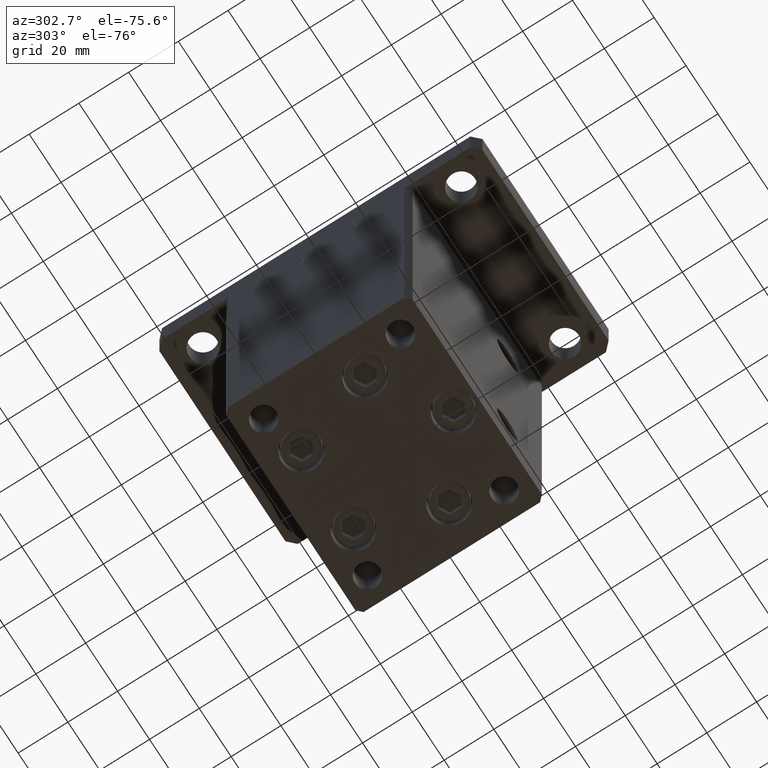
[diagram: clean part render]
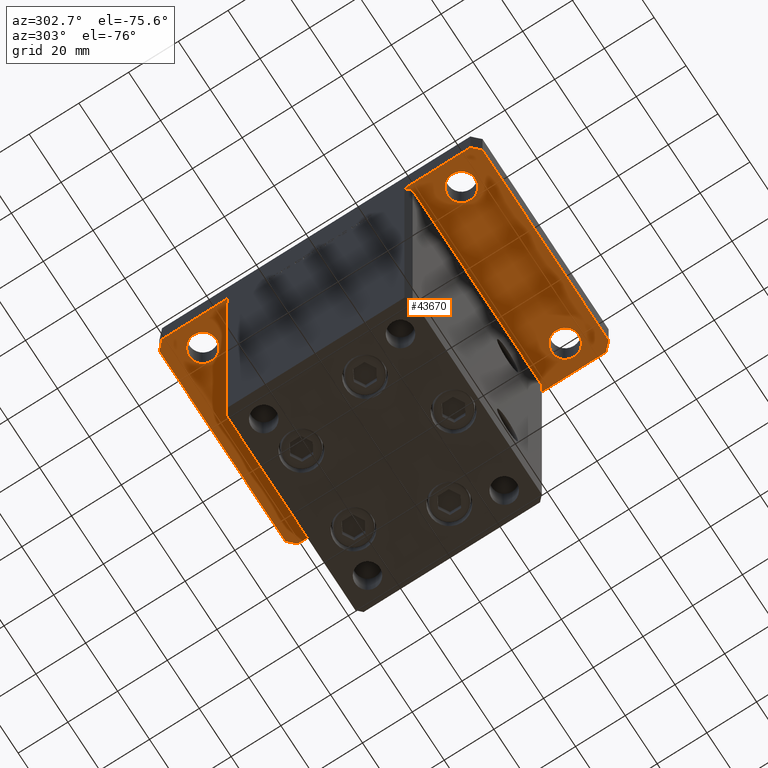
[diagram: same view with one face highlighted and labeled with its STEP entity id]
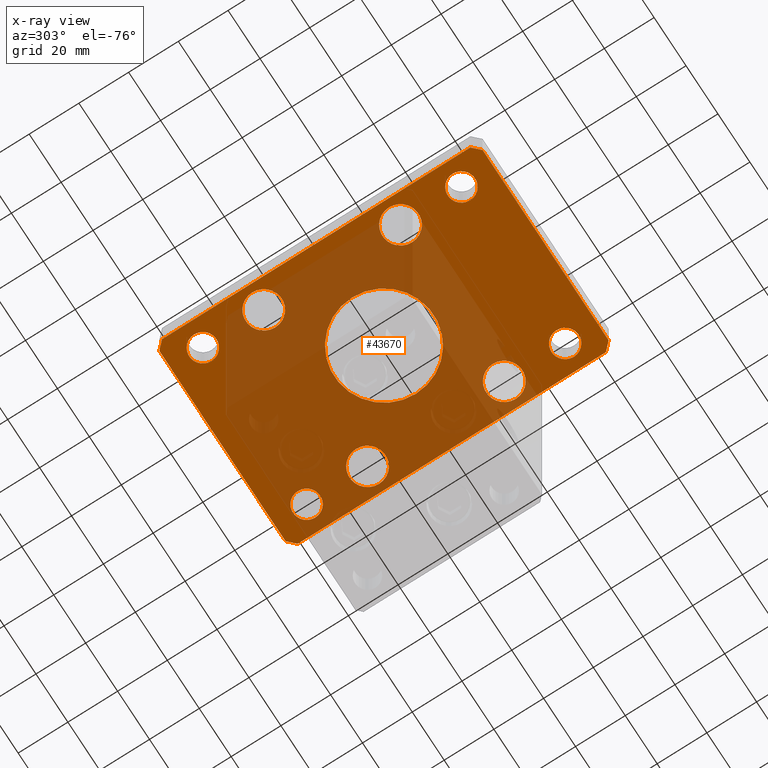
[diagram: x-ray of the same camera — body ghosted, the highlighted face saturated]
A machine part, auxiliary view. The second image highlights one B-rep face of the part: STEP entity #43670.
The next image is the same camera in x-ray: the body ghosted, the highlighted face saturated — about 59% of this face is hidden behind the body in this view.
In plain terms, the highlighted planar face has unit normal (0, 0, 1).
Its self-contained STEP definition (entity closure, byte-faithful):
#44 = CARTESIAN_POINT ( 'NONE',  ( 39.75000000000000000, -27.50000000000000000, 0.000000000000000000 ) ) ;
#769 = PLANE ( 'NONE',  #8761 ) ;
#1121 = AXIS2_PLACEMENT_3D ( 'NONE', #14749, #17997, #39419 ) ;
#1249 = CARTESIAN_POINT ( 'NONE',  ( 0.000000000000000000, 0.000000000000000000, 0.000000000000000000 ) ) ;
#1485 = VERTEX_POINT ( 'NONE', #13244 ) ;
#1499 = AXIS2_PLACEMENT_3D ( 'NONE', #37925, #33861, #50399 ) ;
#1548 = VERTEX_POINT ( 'NONE', #37652 ) ;
#1852 = CIRCLE ( 'NONE', #32178, 20.00000000000000000 ) ;
#2328 = AXIS2_PLACEMENT_3D ( 'NONE', #24050, #3932, #20494 ) ;
#2590 = CARTESIAN_POINT ( 'NONE',  ( -32.50000000000000000, -27.50000000000000000, 0.000000000000000000 ) ) ;
#2632 = AXIS2_PLACEMENT_3D ( 'NONE', #9459, #10540, #50669 ) ;
#3158 = VERTEX_POINT ( 'NONE', #12448 ) ;
#3174 = CIRCLE ( 'NONE', #2328, 5.499999999999994671 ) ;
#3544 = LINE ( 'NONE', #20102, #31447 ) ;
#3727 = VECTOR ( 'NONE', #36435, 1000.000000000000000 ) ;
#3932 = DIRECTION ( 'NONE',  ( 0.000000000000000000, 0.000000000000000000, 1.000000000000000000 ) ) ;
#4274 = AXIS2_PLACEMENT_3D ( 'NONE', #20752, #33217, #29153 ) ;
#4373 = CIRCLE ( 'NONE', #33819, 7.249999999999999112 ) ;
#4520 = CARTESIAN_POINT ( 'NONE',  ( -26.99999999999998579, -52.00000000000000711, 0.000000000000000000 ) ) ;
#4853 = ORIENTED_EDGE ( 'NONE', *, *, #13120, .T. ) ;
#4935 = CIRCLE ( 'NONE', #1499, 5.499999999999994671 ) ;
#5845 = CARTESIAN_POINT ( 'NONE',  ( -32.49999999999997868, -52.00000000000000711, 0.000000000000000000 ) ) ;
#5964 = CIRCLE ( 'NONE', #14616, 5.499999999999994671 ) ;
#6498 = EDGE_CURVE ( 'NONE', #10457, #34930, #26081, .T. ) ;
#6709 = VERTEX_POINT ( 'NONE', #49537 ) ;
#6710 = CIRCLE ( 'NONE', #31010, 7.249999999999999112 ) ;
#6806 = EDGE_CURVE ( 'NONE', #22243, #14317, #50611, .T. ) ;
#6856 = CARTESIAN_POINT ( 'NONE',  ( 39.50000000000001421, -64.99999999999988631, 0.000000000000000000 ) ) ;
#7062 = EDGE_CURVE ( 'NONE', #14317, #10457, #35088, .T. ) ;
#7239 = ORIENTED_EDGE ( 'NONE', *, *, #31981, .T. ) ;
#7310 = VERTEX_POINT ( 'NONE', #24227 ) ;
#7448 = LINE ( 'NONE', #47880, #50309 ) ;
#7853 = FACE_BOUND ( 'NONE', #32542, .T. ) ;
#7884 = DIRECTION ( 'NONE',  ( 1.000000000000000000, 0.000000000000000000, 0.000000000000000000 ) ) ;
#8074 = EDGE_CURVE ( 'NONE', #1485, #16227, #49166, .T. ) ;
#8084 = CARTESIAN_POINT ( 'NONE',  ( -42.49999999999999289, -62.00000000000001421, 0.000000000000000000 ) ) ;
#8123 = ORIENTED_EDGE ( 'NONE', *, *, #8074, .T. ) ;
#8747 = DIRECTION ( 'NONE',  ( 1.000000000000000000, 0.000000000000000000, 0.000000000000000000 ) ) ;
#8761 = AXIS2_PLACEMENT_3D ( 'NONE', #20322, #36858, #37657 ) ;
#9171 = ORIENTED_EDGE ( 'NONE', *, *, #6806, .F. ) ;
#9423 = EDGE_CURVE ( 'NONE', #13547, #35693, #13734, .T. ) ;
#9459 = CARTESIAN_POINT ( 'NONE',  ( 32.50000000000000000, -27.50000000000000000, 0.000000000000000000 ) ) ;
#9612 = ORIENTED_EDGE ( 'NONE', *, *, #48740, .F. ) ;
#9715 = VERTEX_POINT ( 'NONE', #25570 ) ;
#9937 = DIRECTION ( 'NONE',  ( 0.7071067811865459074, 0.7071067811865491270, 0.000000000000000000 ) ) ;
#9940 = CARTESIAN_POINT ( 'NONE',  ( 32.50000000000000000, 27.50000000000000000, 0.000000000000000000 ) ) ;
#10457 = VERTEX_POINT ( 'NONE', #39820 ) ;
#10540 = DIRECTION ( 'NONE',  ( 0.000000000000000000, 0.000000000000000000, 1.000000000000000000 ) ) ;
#10638 = CIRCLE ( 'NONE', #18472, 5.499999999999991118 ) ;
#11381 = AXIS2_PLACEMENT_3D ( 'NONE', #9940, #17538, #46814 ) ;
#11847 = ORIENTED_EDGE ( 'NONE', *, *, #42621, .F. ) ;
#11989 = EDGE_LOOP ( 'NONE', ( #25620, #38743 ) ) ;
#12401 = VERTEX_POINT ( 'NONE', #50434 ) ;
#12448 = CARTESIAN_POINT ( 'NONE',  ( -39.50000000000003553, 65.00000000000000000, 0.000000000000000000 ) ) ;
#12706 = FACE_BOUND ( 'NONE', #35145, .T. ) ;
#12799 = DIRECTION ( 'NONE',  ( 0.000000000000000000, 0.000000000000000000, 1.000000000000000000 ) ) ;
#12893 = ORIENTED_EDGE ( 'NONE', *, *, #49151, .T. ) ;
#13120 = EDGE_CURVE ( 'NONE', #9715, #33243, #6710, .T. ) ;
#13200 = DIRECTION ( 'NONE',  ( 0.000000000000000000, 0.000000000000000000, -1.000000000000000000 ) ) ;
#13217 = AXIS2_PLACEMENT_3D ( 'NONE', #42573, #46901, #14364 ) ;
#13232 = ORIENTED_EDGE ( 'NONE', *, *, #47444, .F. ) ;
#13244 = CARTESIAN_POINT ( 'NONE',  ( -39.75000000000000000, -27.50000000000000000, 0.000000000000000000 ) ) ;
#13547 = VERTEX_POINT ( 'NONE', #36778 ) ;
#13734 = CIRCLE ( 'NONE', #17151, 5.499999999999998224 ) ;
#13823 = CIRCLE ( 'NONE', #4274, 7.249999999999999112 ) ;
#14050 = DIRECTION ( 'NONE',  ( 0.000000000000000000, 0.000000000000000000, -1.000000000000000000 ) ) ;
#14232 = CARTESIAN_POINT ( 'NONE',  ( 39.50000000000002842, 65.00000000000002842, 0.000000000000000000 ) ) ;
#14317 = VERTEX_POINT ( 'NONE', #47696 ) ;
#14364 = DIRECTION ( 'NONE',  ( 1.000000000000000000, 0.000000000000000000, 0.000000000000000000 ) ) ;
#14616 = AXIS2_PLACEMENT_3D ( 'NONE', #5845, #51959, #34871 ) ;
#14749 = CARTESIAN_POINT ( 'NONE',  ( 32.50000000000000000, 51.99999999999999289, 0.000000000000000000 ) ) ;
#15266 = VERTEX_POINT ( 'NONE', #8084 ) ;
#15407 = CARTESIAN_POINT ( 'NONE',  ( 25.25000000000000000, -27.50000000000000000, 0.000000000000000000 ) ) ;
#15725 = FACE_OUTER_BOUND ( 'NONE', #24889, .T. ) ;
#15784 = AXIS2_PLACEMENT_3D ( 'NONE', #51992, #35708, #52252 ) ;
#15945 = EDGE_LOOP ( 'NONE', ( #16231, #20286 ) ) ;
#16187 = VECTOR ( 'NONE', #47486, 1000.000000000000000 ) ;
#16227 = VERTEX_POINT ( 'NONE', #32507 ) ;
#16231 = ORIENTED_EDGE ( 'NONE', *, *, #39219, .T. ) ;
#16245 = FACE_BOUND ( 'NONE', #48059, .T. ) ;
#16457 = CARTESIAN_POINT ( 'NONE',  ( -27.00000000000000711, 52.00000000000000000, 0.000000000000000000 ) ) ;
#16502 = VECTOR ( 'NONE', #39536, 1000.000000000000000 ) ;
#17151 = AXIS2_PLACEMENT_3D ( 'NONE', #17235, #45979, #29180 ) ;
#17235 = CARTESIAN_POINT ( 'NONE',  ( 32.49999999999997868, -52.00000000000000711, 0.000000000000000000 ) ) ;
#17422 = ORIENTED_EDGE ( 'NONE', *, *, #32107, .F. ) ;
#17538 = DIRECTION ( 'NONE',  ( 0.000000000000000000, 0.000000000000000000, 1.000000000000000000 ) ) ;
#17871 = ORIENTED_EDGE ( 'NONE', *, *, #24212, .T. ) ;
#17997 = DIRECTION ( 'NONE',  ( 0.000000000000000000, 0.000000000000000000, 1.000000000000000000 ) ) ;
#18472 = AXIS2_PLACEMENT_3D ( 'NONE', #44505, #48826, #7884 ) ;
#19521 = ORIENTED_EDGE ( 'NONE', *, *, #9423, .T. ) ;
#19539 = DIRECTION ( 'NONE',  ( 1.000000000000000000, 0.000000000000000000, 0.000000000000000000 ) ) ;
#19827 = AXIS2_PLACEMENT_3D ( 'NONE', #44534, #36133, #32332 ) ;
#20069 = FACE_BOUND ( 'NONE', #33847, .T. ) ;
#20102 = CARTESIAN_POINT ( 'NONE',  ( 39.50000000000002842, 65.00000000000002842, 0.000000000000000000 ) ) ;
#20158 = CIRCLE ( 'NONE', #33972, 20.00000000000000000 ) ;
#20286 = ORIENTED_EDGE ( 'NONE', *, *, #33918, .T. ) ;
#20322 = CARTESIAN_POINT ( 'NONE',  ( 0.000000000000000000, 0.000000000000000000, 0.000000000000000000 ) ) ;
#20451 = EDGE_CURVE ( 'NONE', #12401, #51738, #1852, .T. ) ;
#20494 = DIRECTION ( 'NONE',  ( 1.000000000000000000, 0.000000000000000000, 0.000000000000000000 ) ) ;
#20588 = FACE_BOUND ( 'NONE', #15945, .T. ) ;
#20752 = CARTESIAN_POINT ( 'NONE',  ( 32.50000000000000000, 27.50000000000000000, 0.000000000000000000 ) ) ;
#21402 = FACE_BOUND ( 'NONE', #11989, .T. ) ;
#22243 = VERTEX_POINT ( 'NONE', #6856 ) ;
#22365 = DIRECTION ( 'NONE',  ( 0.000000000000000000, 1.000000000000000000, 0.000000000000000000 ) ) ;
#22438 = VECTOR ( 'NONE', #30138, 1000.000000000000000 ) ;
#22534 = ORIENTED_EDGE ( 'NONE', *, *, #46144, .T. ) ;
#22567 = EDGE_CURVE ( 'NONE', #28312, #1548, #3174, .T. ) ;
#23864 = FACE_BOUND ( 'NONE', #50257, .T. ) ;
#24050 = CARTESIAN_POINT ( 'NONE',  ( -32.49999999999997868, -52.00000000000000711, 0.000000000000000000 ) ) ;
#24212 = EDGE_CURVE ( 'NONE', #46060, #52028, #4935, .T. ) ;
#24227 = CARTESIAN_POINT ( 'NONE',  ( 27.00000000000001421, 51.99999999999999289, 0.000000000000000000 ) ) ;
#24574 = EDGE_LOOP ( 'NONE', ( #29111, #27804 ) ) ;
#24889 = EDGE_LOOP ( 'NONE', ( #11847, #28462, #9612, #17422, #26812, #25330, #43600, #9171 ) ) ;
#25150 = CIRCLE ( 'NONE', #32215, 7.249999999999999112 ) ;
#25330 = ORIENTED_EDGE ( 'NONE', *, *, #6498, .F. ) ;
#25498 = VERTEX_POINT ( 'NONE', #41812 ) ;
#25570 = CARTESIAN_POINT ( 'NONE',  ( -25.25000000000000711, 27.50000000000000000, 0.000000000000000000 ) ) ;
#25620 = ORIENTED_EDGE ( 'NONE', *, *, #40786, .T. ) ;
#25877 = CARTESIAN_POINT ( 'NONE',  ( 42.50000000000000000, -61.99999999999988631, 0.000000000000000000 ) ) ;
#26016 = CIRCLE ( 'NONE', #2632, 7.249999999999999112 ) ;
#26081 = LINE ( 'NONE', #50742, #16187 ) ;
#26171 = ORIENTED_EDGE ( 'NONE', *, *, #20451, .F. ) ;
#26812 = ORIENTED_EDGE ( 'NONE', *, *, #49203, .F. ) ;
#27076 = CIRCLE ( 'NONE', #15784, 5.499999999999994671 ) ;
#27285 = DIRECTION ( 'NONE',  ( 0.000000000000000000, 0.000000000000000000, 1.000000000000000000 ) ) ;
#27618 = VERTEX_POINT ( 'NONE', #34782 ) ;
#27804 = ORIENTED_EDGE ( 'NONE', *, *, #22567, .T. ) ;
#28312 = VERTEX_POINT ( 'NONE', #4520 ) ;
#28462 = ORIENTED_EDGE ( 'NONE', *, *, #38344, .F. ) ;
#29111 = ORIENTED_EDGE ( 'NONE', *, *, #31662, .T. ) ;
#29153 = DIRECTION ( 'NONE',  ( 1.000000000000000000, 0.000000000000000000, 0.000000000000000000 ) ) ;
#29180 = DIRECTION ( 'NONE',  ( 1.000000000000000000, 0.000000000000000000, 0.000000000000000000 ) ) ;
#29326 = LINE ( 'NONE', #50460, #22438 ) ;
#29570 = CIRCLE ( 'NONE', #11381, 7.249999999999999112 ) ;
#30138 = DIRECTION ( 'NONE',  ( -0.7071067811865466846, -0.7071067811865483499, 0.000000000000000000 ) ) ;
#30674 = ORIENTED_EDGE ( 'NONE', *, *, #41755, .T. ) ;
#30864 = DIRECTION ( 'NONE',  ( -1.000000000000000000, 0.000000000000000000, 0.000000000000000000 ) ) ;
#31010 = AXIS2_PLACEMENT_3D ( 'NONE', #45370, #49168, #8747 ) ;
#31447 = VECTOR ( 'NONE', #36887, 1000.000000000000000 ) ;
#31662 = EDGE_CURVE ( 'NONE', #1548, #28312, #5964, .T. ) ;
#31885 = DIRECTION ( 'NONE',  ( 0.7071067811865483499, -0.7071067811865466846, 0.000000000000000000 ) ) ;
#31981 = EDGE_CURVE ( 'NONE', #33243, #9715, #43215, .T. ) ;
#32107 = EDGE_CURVE ( 'NONE', #3158, #25498, #29326, .T. ) ;
#32178 = AXIS2_PLACEMENT_3D ( 'NONE', #38735, #14050, #30864 ) ;
#32215 = AXIS2_PLACEMENT_3D ( 'NONE', #45274, #45013, #19539 ) ;
#32275 = FACE_BOUND ( 'NONE', #24574, .T. ) ;
#32332 = DIRECTION ( 'NONE',  ( 1.000000000000000000, 0.000000000000000000, 0.000000000000000000 ) ) ;
#32507 = CARTESIAN_POINT ( 'NONE',  ( -25.25000000000000000, -27.50000000000000000, 0.000000000000000000 ) ) ;
#32542 = EDGE_LOOP ( 'NONE', ( #17871, #22534 ) ) ;
#33217 = DIRECTION ( 'NONE',  ( 0.000000000000000000, 0.000000000000000000, 1.000000000000000000 ) ) ;
#33243 = VERTEX_POINT ( 'NONE', #44740 ) ;
#33819 = AXIS2_PLACEMENT_3D ( 'NONE', #2590, #27285, #47868 ) ;
#33847 = EDGE_LOOP ( 'NONE', ( #12893, #48863 ) ) ;
#33861 = DIRECTION ( 'NONE',  ( 0.000000000000000000, 0.000000000000000000, 1.000000000000000000 ) ) ;
#33918 = EDGE_CURVE ( 'NONE', #35261, #6709, #13823, .T. ) ;
#33972 = AXIS2_PLACEMENT_3D ( 'NONE', #1249, #13200, #50621 ) ;
#34442 = AXIS2_PLACEMENT_3D ( 'NONE', #46145, #12799, #49150 ) ;
#34782 = CARTESIAN_POINT ( 'NONE',  ( -39.50000000000000000, -65.00000000000000000, 0.000000000000000000 ) ) ;
#34871 = DIRECTION ( 'NONE',  ( 1.000000000000000000, 0.000000000000000000, 0.000000000000000000 ) ) ;
#34930 = VERTEX_POINT ( 'NONE', #14232 ) ;
#35088 = LINE ( 'NONE', #25877, #51761 ) ;
#35145 = EDGE_LOOP ( 'NONE', ( #8123, #30674 ) ) ;
#35261 = VERTEX_POINT ( 'NONE', #45623 ) ;
#35693 = VERTEX_POINT ( 'NONE', #44458 ) ;
#35708 = DIRECTION ( 'NONE',  ( 0.000000000000000000, 0.000000000000000000, 1.000000000000000000 ) ) ;
#35811 = CIRCLE ( 'NONE', #1121, 5.499999999999991118 ) ;
#36133 = DIRECTION ( 'NONE',  ( 0.000000000000000000, 0.000000000000000000, 1.000000000000000000 ) ) ;
#36435 = DIRECTION ( 'NONE',  ( 2.238352872228137677E-16, -1.000000000000000000, 0.000000000000000000 ) ) ;
#36778 = CARTESIAN_POINT ( 'NONE',  ( 26.99999999999998579, -52.00000000000000711, 0.000000000000000000 ) ) ;
#36858 = DIRECTION ( 'NONE',  ( 0.000000000000000000, 0.000000000000000000, 1.000000000000000000 ) ) ;
#36887 = DIRECTION ( 'NONE',  ( -1.000000000000000000, -3.513364001978340512E-16, 0.000000000000000000 ) ) ;
#37652 = CARTESIAN_POINT ( 'NONE',  ( -37.99999999999997868, -52.00000000000000711, 0.000000000000000000 ) ) ;
#37657 = DIRECTION ( 'NONE',  ( 1.000000000000000000, 0.000000000000000000, -0.000000000000000000 ) ) ;
#37893 = EDGE_CURVE ( 'NONE', #45769, #51239, #26016, .T. ) ;
#37925 = CARTESIAN_POINT ( 'NONE',  ( -32.50000000000000000, 52.00000000000000000, 0.000000000000000000 ) ) ;
#37940 = CARTESIAN_POINT ( 'NONE',  ( 20.00000000000000000, 2.449293598294706513E-15, 0.000000000000000000 ) ) ;
#38344 = EDGE_CURVE ( 'NONE', #15266, #27618, #7448, .T. ) ;
#38414 = EDGE_LOOP ( 'NONE', ( #7239, #4853 ) ) ;
#38735 = CARTESIAN_POINT ( 'NONE',  ( 0.000000000000000000, 0.000000000000000000, 0.000000000000000000 ) ) ;
#38743 = ORIENTED_EDGE ( 'NONE', *, *, #37893, .T. ) ;
#39219 = EDGE_CURVE ( 'NONE', #6709, #35261, #29570, .T. ) ;
#39419 = DIRECTION ( 'NONE',  ( 1.000000000000000000, 0.000000000000000000, 0.000000000000000000 ) ) ;
#39536 = DIRECTION ( 'NONE',  ( 1.000000000000000000, 1.405345600791337191E-15, 0.000000000000000000 ) ) ;
#39820 = CARTESIAN_POINT ( 'NONE',  ( 42.50000000000000000, 62.00000000000000711, 0.000000000000000000 ) ) ;
#40786 = EDGE_CURVE ( 'NONE', #51239, #45769, #25150, .T. ) ;
#41465 = FACE_BOUND ( 'NONE', #38414, .T. ) ;
#41755 = EDGE_CURVE ( 'NONE', #16227, #1485, #4373, .T. ) ;
#41812 = CARTESIAN_POINT ( 'NONE',  ( -42.50000000000002132, 62.00000000000000711, 0.000000000000000000 ) ) ;
#42573 = CARTESIAN_POINT ( 'NONE',  ( 32.49999999999997868, -52.00000000000000711, 0.000000000000000000 ) ) ;
#42621 = EDGE_CURVE ( 'NONE', #27618, #22243, #43866, .T. ) ;
#42648 = CIRCLE ( 'NONE', #13217, 5.499999999999998224 ) ;
#43215 = CIRCLE ( 'NONE', #19827, 7.249999999999999112 ) ;
#43346 = CARTESIAN_POINT ( 'NONE',  ( -39.50000000000000000, -65.00000000000000000, 0.000000000000000000 ) ) ;
#43600 = ORIENTED_EDGE ( 'NONE', *, *, #7062, .F. ) ;
#43670 = ADVANCED_FACE ( 'NONE', ( #23864, #15725, #32275, #20069, #7853, #12706, #21402, #20588, #41465, #16245 ), #769, .F. ) ;
#43866 = LINE ( 'NONE', #43346, #16502 ) ;
#43883 = CARTESIAN_POINT ( 'NONE',  ( 37.99999999999999289, 51.99999999999999289, 0.000000000000000000 ) ) ;
#44458 = CARTESIAN_POINT ( 'NONE',  ( 37.99999999999997868, -52.00000000000000711, 0.000000000000000000 ) ) ;
#44505 = CARTESIAN_POINT ( 'NONE',  ( 32.50000000000000000, 51.99999999999999289, 0.000000000000000000 ) ) ;
#44534 = CARTESIAN_POINT ( 'NONE',  ( -32.50000000000000711, 27.50000000000000000, 0.000000000000000000 ) ) ;
#44740 = CARTESIAN_POINT ( 'NONE',  ( -39.75000000000000711, 27.50000000000000000, 0.000000000000000000 ) ) ;
#44810 = VECTOR ( 'NONE', #9937, 1000.000000000000114 ) ;
#45013 = DIRECTION ( 'NONE',  ( 0.000000000000000000, 0.000000000000000000, 1.000000000000000000 ) ) ;
#45274 = CARTESIAN_POINT ( 'NONE',  ( 32.50000000000000000, -27.50000000000000000, 0.000000000000000000 ) ) ;
#45370 = CARTESIAN_POINT ( 'NONE',  ( -32.50000000000000711, 27.50000000000000000, 0.000000000000000000 ) ) ;
#45623 = CARTESIAN_POINT ( 'NONE',  ( 39.75000000000000000, 27.50000000000000000, 0.000000000000000000 ) ) ;
#45769 = VERTEX_POINT ( 'NONE', #44 ) ;
#45979 = DIRECTION ( 'NONE',  ( 0.000000000000000000, 0.000000000000000000, 1.000000000000000000 ) ) ;
#46060 = VERTEX_POINT ( 'NONE', #50084 ) ;
#46144 = EDGE_CURVE ( 'NONE', #52028, #46060, #27076, .T. ) ;
#46145 = CARTESIAN_POINT ( 'NONE',  ( -32.50000000000000000, -27.50000000000000000, 0.000000000000000000 ) ) ;
#46814 = DIRECTION ( 'NONE',  ( 1.000000000000000000, 0.000000000000000000, 0.000000000000000000 ) ) ;
#46901 = DIRECTION ( 'NONE',  ( 0.000000000000000000, 0.000000000000000000, 1.000000000000000000 ) ) ;
#46954 = EDGE_CURVE ( 'NONE', #35693, #13547, #42648, .T. ) ;
#47078 = CARTESIAN_POINT ( 'NONE',  ( 39.50000000000001421, -64.99999999999988631, 0.000000000000000000 ) ) ;
#47444 = EDGE_CURVE ( 'NONE', #51738, #12401, #20158, .T. ) ;
#47486 = DIRECTION ( 'NONE',  ( -0.7071067811865417996, 0.7071067811865532349, 0.000000000000000000 ) ) ;
#47590 = ORIENTED_EDGE ( 'NONE', *, *, #46954, .T. ) ;
#47696 = CARTESIAN_POINT ( 'NONE',  ( 42.50000000000000000, -61.99999999999988631, 0.000000000000000000 ) ) ;
#47868 = DIRECTION ( 'NONE',  ( 1.000000000000000000, 0.000000000000000000, 0.000000000000000000 ) ) ;
#47880 = CARTESIAN_POINT ( 'NONE',  ( -42.49999999999999289, -62.00000000000001421, 0.000000000000000000 ) ) ;
#48059 = EDGE_LOOP ( 'NONE', ( #19521, #47590 ) ) ;
#48362 = CARTESIAN_POINT ( 'NONE',  ( -42.50000000000002132, 62.00000000000000711, 0.000000000000000000 ) ) ;
#48740 = EDGE_CURVE ( 'NONE', #25498, #15266, #52716, .T. ) ;
#48826 = DIRECTION ( 'NONE',  ( 0.000000000000000000, 0.000000000000000000, 1.000000000000000000 ) ) ;
#48863 = ORIENTED_EDGE ( 'NONE', *, *, #50450, .T. ) ;
#49150 = DIRECTION ( 'NONE',  ( 1.000000000000000000, 0.000000000000000000, 0.000000000000000000 ) ) ;
#49151 = EDGE_CURVE ( 'NONE', #7310, #51296, #10638, .T. ) ;
#49166 = CIRCLE ( 'NONE', #34442, 7.249999999999999112 ) ;
#49168 = DIRECTION ( 'NONE',  ( 0.000000000000000000, 0.000000000000000000, 1.000000000000000000 ) ) ;
#49203 = EDGE_CURVE ( 'NONE', #34930, #3158, #3544, .T. ) ;
#49537 = CARTESIAN_POINT ( 'NONE',  ( 25.25000000000000000, 27.50000000000000000, 0.000000000000000000 ) ) ;
#50084 = CARTESIAN_POINT ( 'NONE',  ( -38.00000000000000000, 52.00000000000000000, 0.000000000000000000 ) ) ;
#50257 = EDGE_LOOP ( 'NONE', ( #26171, #13232 ) ) ;
#50309 = VECTOR ( 'NONE', #31885, 1000.000000000000000 ) ;
#50399 = DIRECTION ( 'NONE',  ( 1.000000000000000000, 0.000000000000000000, 0.000000000000000000 ) ) ;
#50434 = CARTESIAN_POINT ( 'NONE',  ( -20.00000000000000000, 0.000000000000000000, 0.000000000000000000 ) ) ;
#50450 = EDGE_CURVE ( 'NONE', #51296, #7310, #35811, .T. ) ;
#50460 = CARTESIAN_POINT ( 'NONE',  ( -39.50000000000003553, 65.00000000000000000, 0.000000000000000000 ) ) ;
#50611 = LINE ( 'NONE', #47078, #44810 ) ;
#50621 = DIRECTION ( 'NONE',  ( -1.000000000000000000, 0.000000000000000000, 0.000000000000000000 ) ) ;
#50669 = DIRECTION ( 'NONE',  ( 1.000000000000000000, 0.000000000000000000, 0.000000000000000000 ) ) ;
#50742 = CARTESIAN_POINT ( 'NONE',  ( 42.50000000000000000, 62.00000000000000711, 0.000000000000000000 ) ) ;
#51239 = VERTEX_POINT ( 'NONE', #15407 ) ;
#51296 = VERTEX_POINT ( 'NONE', #43883 ) ;
#51738 = VERTEX_POINT ( 'NONE', #37940 ) ;
#51761 = VECTOR ( 'NONE', #22365, 1000.000000000000000 ) ;
#51959 = DIRECTION ( 'NONE',  ( 0.000000000000000000, 0.000000000000000000, 1.000000000000000000 ) ) ;
#51992 = CARTESIAN_POINT ( 'NONE',  ( -32.50000000000000000, 52.00000000000000000, 0.000000000000000000 ) ) ;
#52028 = VERTEX_POINT ( 'NONE', #16457 ) ;
#52252 = DIRECTION ( 'NONE',  ( 1.000000000000000000, 0.000000000000000000, 0.000000000000000000 ) ) ;
#52716 = LINE ( 'NONE', #48362, #3727 ) ;